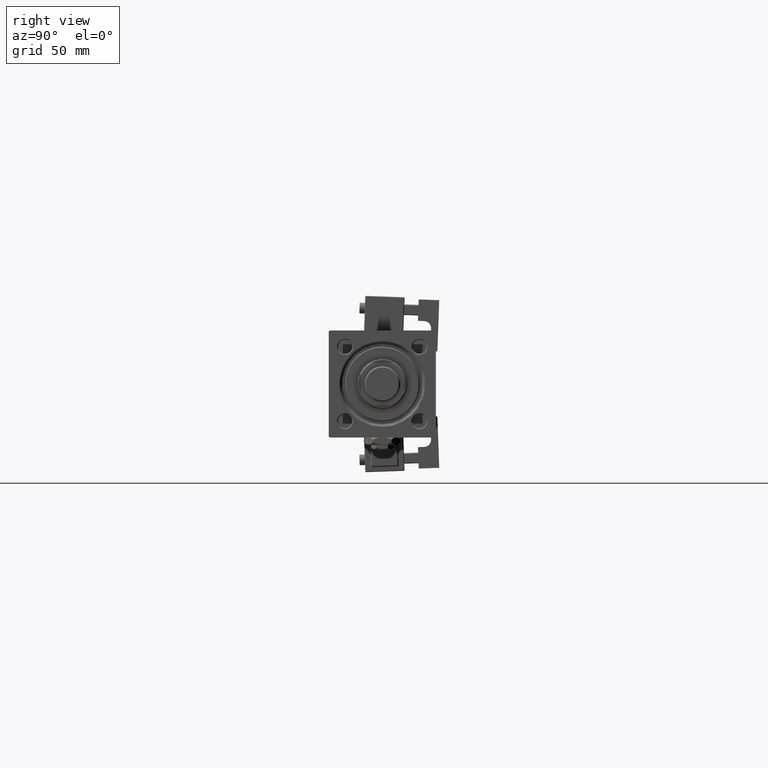
[diagram: clean part render]
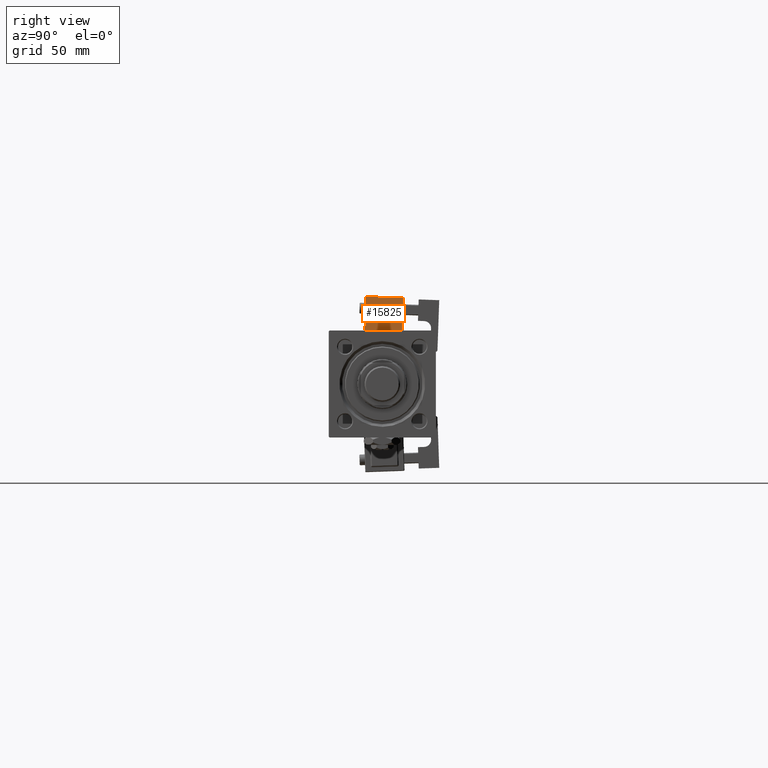
[diagram: same view with one face highlighted and labeled with its STEP entity id]
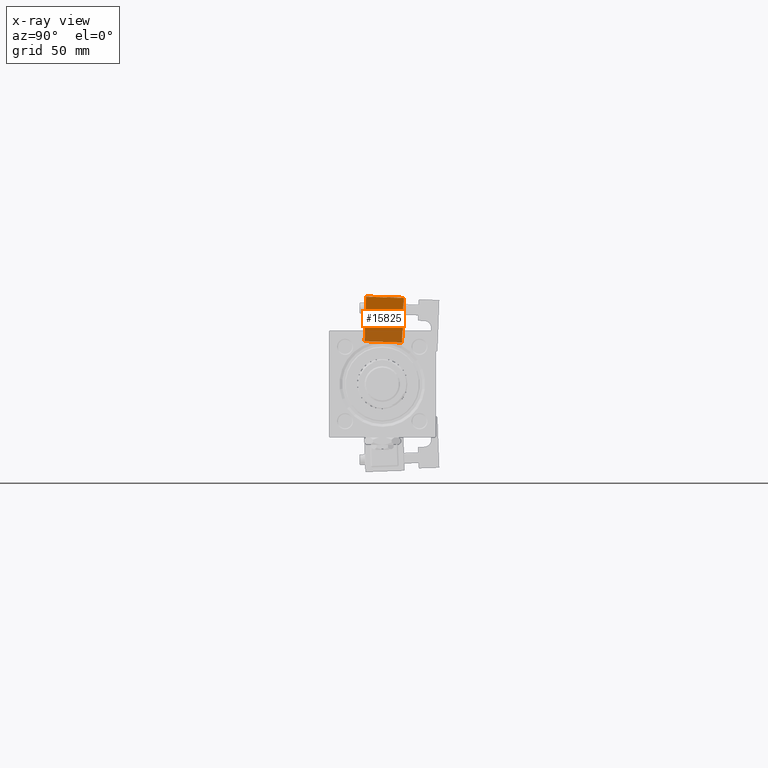
[diagram: x-ray of the same camera — body ghosted, the highlighted face saturated]
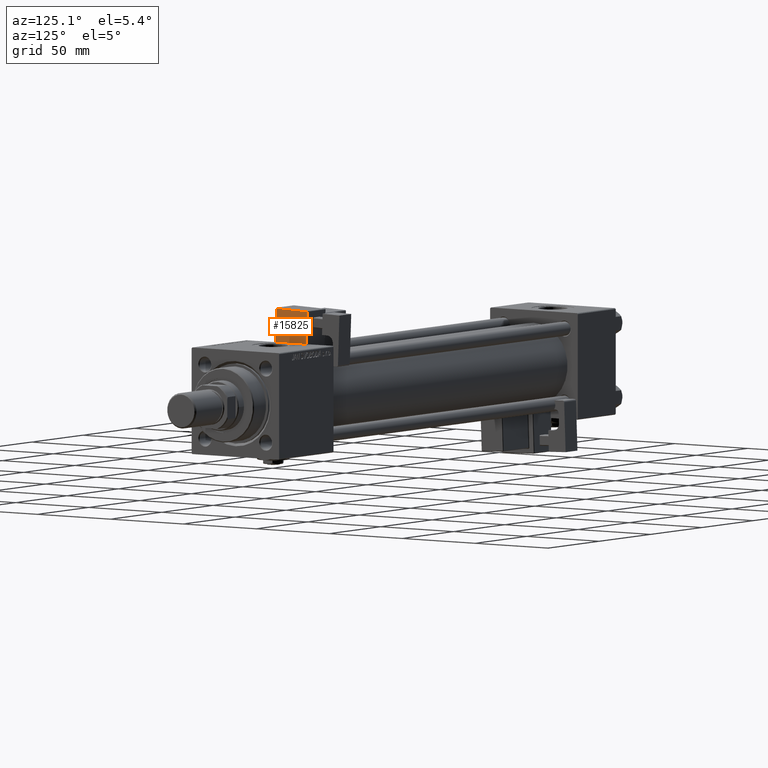
[diagram: same view with one face highlighted and labeled with its STEP entity id]
A machine part, right view. The second image highlights one B-rep face of the part: STEP entity #15825.
The next image is the same camera in x-ray: the body ghosted, the highlighted face saturated — about 25% of this face is hidden behind the body in this view.
A second angle (auxiliary view) of the same face is appended — the face is thin or edge-on in the first view.
In plain terms, the highlighted planar face has unit normal (-1, 0, 0).
Its self-contained STEP definition (entity closure, byte-faithful):
#1501 = LINE ( 'NONE', #19537, #6394 ) ;
#2213 = DIRECTION ( 'NONE',  ( -0.000000000000000000, -1.000000000000000000, -0.000000000000000000 ) ) ;
#3056 = VERTEX_POINT ( 'NONE', #33971 ) ;
#3958 = EDGE_LOOP ( 'NONE', ( #25919, #38186, #34301, #27337 ) ) ;
#6394 = VECTOR ( 'NONE', #48956, 1000.000000000000000 ) ;
#7143 = CARTESIAN_POINT ( 'NONE',  ( -8.750000000000000000, -35.75000000000000000, 25.00000000000000000 ) ) ;
#10709 = EDGE_CURVE ( 'NONE', #19946, #3056, #1501, .T. ) ;
#12802 = DIRECTION ( 'NONE',  ( -1.334402673828313093E-16, 0.000000000000000000, -1.000000000000000000 ) ) ;
#15825 = ADVANCED_FACE ( 'NONE', ( #36035 ), #36315, .F. ) ;
#16279 = EDGE_CURVE ( 'NONE', #17914, #39397, #30662, .T. ) ;
#17914 = VERTEX_POINT ( 'NONE', #46072 ) ;
#19537 = CARTESIAN_POINT ( 'NONE',  ( -8.750000000000000000, -35.75000000000000000, 24.50000000000000000 ) ) ;
#19946 = VERTEX_POINT ( 'NONE', #41714 ) ;
#19994 = EDGE_CURVE ( 'NONE', #3056, #17914, #29506, .T. ) ;
#22318 = CARTESIAN_POINT ( 'NONE',  ( -8.750000000000003553, -35.25000000000000000, -0.5000000000000001110 ) ) ;
#23341 = CARTESIAN_POINT ( 'NONE',  ( -8.750000000000003553, -35.75000000000000000, -0.5000000000000004441 ) ) ;
#24369 = DIRECTION ( 'NONE',  ( -1.334402673828313093E-16, 0.000000000000000000, -1.000000000000000000 ) ) ;
#24785 = CARTESIAN_POINT ( 'NONE',  ( -8.750000000000003553, -14.24999999999999822, -1.000000000000000888 ) ) ;
#25919 = ORIENTED_EDGE ( 'NONE', *, *, #49896, .T. ) ;
#27337 = ORIENTED_EDGE ( 'NONE', *, *, #16279, .T. ) ;
#29506 = LINE ( 'NONE', #24785, #46523 ) ;
#30662 = LINE ( 'NONE', #23341, #32233 ) ;
#31360 = DIRECTION ( 'NONE',  ( 1.334402673828313093E-16, -0.000000000000000000, 1.000000000000000000 ) ) ;
#32233 = VECTOR ( 'NONE', #2213, 1000.000000000000000 ) ;
#33111 = AXIS2_PLACEMENT_3D ( 'NONE', #7143, #36592, #24369 ) ;
#33971 = CARTESIAN_POINT ( 'NONE',  ( -8.750000000000000000, -14.24999999999999822, 24.50000000000000000 ) ) ;
#34301 = ORIENTED_EDGE ( 'NONE', *, *, #19994, .T. ) ;
#36035 = FACE_OUTER_BOUND ( 'NONE', #3958, .T. ) ;
#36315 = PLANE ( 'NONE',  #33111 ) ;
#36592 = DIRECTION ( 'NONE',  ( 1.000000000000000000, 0.000000000000000000, -1.334402673828313093E-16 ) ) ;
#36885 = LINE ( 'NONE', #53541, #45179 ) ;
#38186 = ORIENTED_EDGE ( 'NONE', *, *, #10709, .T. ) ;
#39397 = VERTEX_POINT ( 'NONE', #22318 ) ;
#41714 = CARTESIAN_POINT ( 'NONE',  ( -8.750000000000000000, -35.25000000000000000, 24.50000000000000000 ) ) ;
#45179 = VECTOR ( 'NONE', #31360, 1000.000000000000000 ) ;
#46072 = CARTESIAN_POINT ( 'NONE',  ( -8.750000000000003553, -14.24999999999999822, -0.5000000000000001110 ) ) ;
#46523 = VECTOR ( 'NONE', #12802, 1000.000000000000000 ) ;
#48956 = DIRECTION ( 'NONE',  ( 0.000000000000000000, 1.000000000000000000, 0.000000000000000000 ) ) ;
#49896 = EDGE_CURVE ( 'NONE', #39397, #19946, #36885, .T. ) ;
#53541 = CARTESIAN_POINT ( 'NONE',  ( -8.750000000000000000, -35.25000000000000000, 25.00000000000000000 ) ) ;